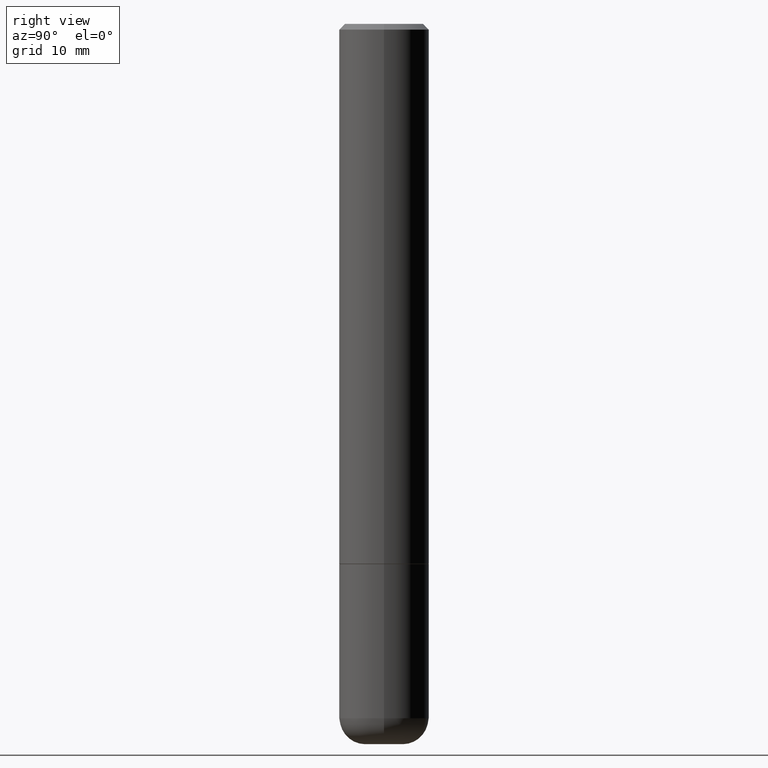
[diagram: clean part render]
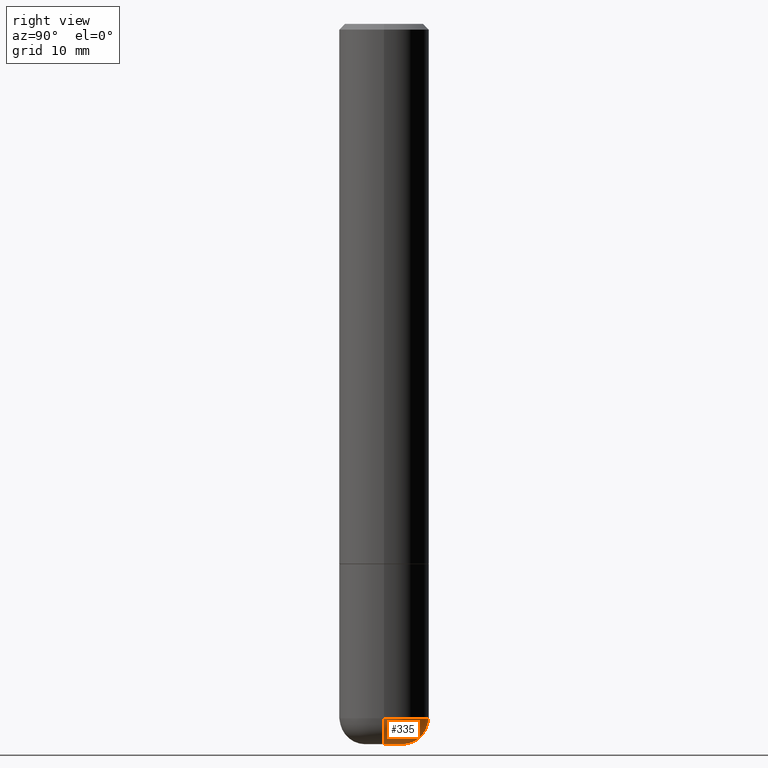
[diagram: same view with one face highlighted and labeled with its STEP entity id]
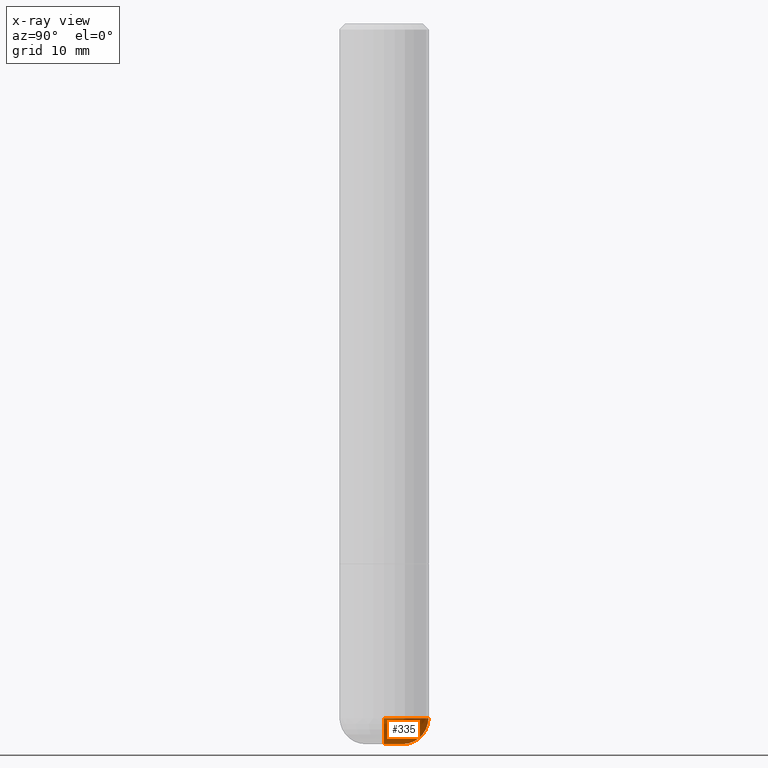
[diagram: x-ray of the same camera — body ghosted, the highlighted face saturated]
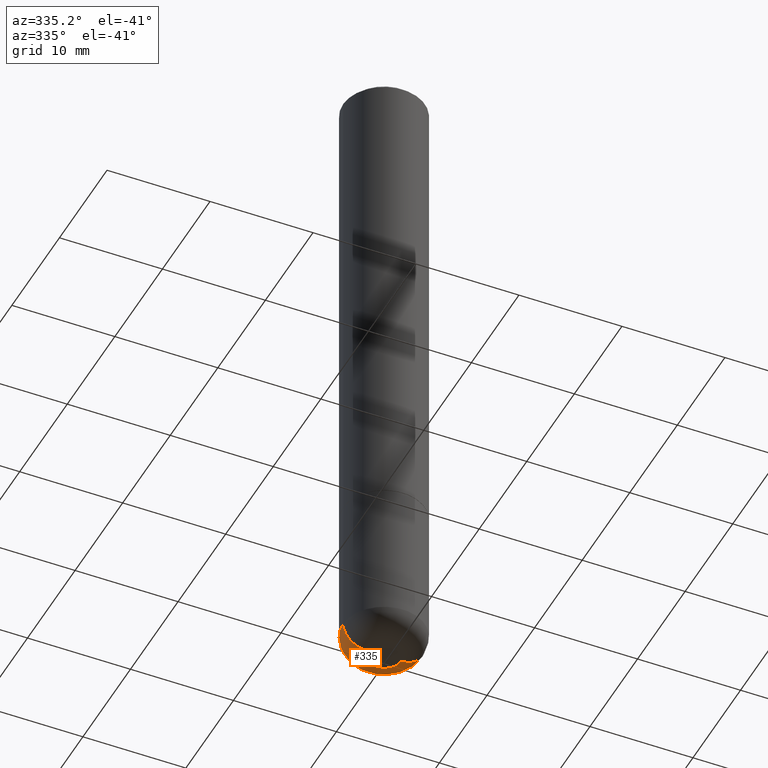
[diagram: same view with one face highlighted and labeled with its STEP entity id]
A machine part, right view. The second image highlights one B-rep face of the part: STEP entity #335.
The next image is the same camera in x-ray: the body ghosted, the highlighted face saturated — about 0% of this face is hidden behind the body in this view.
A second angle (auxiliary view) of the same face is appended — the face is thin or edge-on in the first view.
In plain terms, the highlighted toroidal blend (fillet) surface has major radius 1.6828 mm and minor (blend) radius 2.286 mm.
Its self-contained STEP definition (entity closure, byte-faithful):
#9 = DIRECTION ( 'NONE',  ( -1.000000000000000000, 7.105427357601006592E-15, 0.000000000000000000 ) ) ;
#11 = AXIS2_PLACEMENT_3D ( 'NONE', #305, #25, #283 ) ;
#20 = AXIS2_PLACEMENT_3D ( 'NONE', #362, #293, #156 ) ;
#25 = DIRECTION ( 'NONE',  ( -6.982962677686266711E-15, -1.000000000000000000, 3.491481338843145583E-15 ) ) ;
#27 = ORIENTED_EDGE ( 'NONE', *, *, #66, .T. ) ;
#42 = EDGE_CURVE ( 'NONE', #409, #275, #299, .T. ) ;
#61 = EDGE_CURVE ( 'NONE', #170, #330, #346, .T. ) ;
#66 = EDGE_CURVE ( 'NONE', #409, #170, #384, .T. ) ;
#68 = DIRECTION ( 'NONE',  ( -2.445468806185136597E-29, 3.491481338843145583E-15, 1.000000000000000000 ) ) ;
#75 = DIRECTION ( 'NONE',  ( 1.000000000000000000, -6.982962677686262766E-15, 0.000000000000000000 ) ) ;
#97 = AXIS2_PLACEMENT_3D ( 'NONE', #183, #179, #113 ) ;
#101 = TOROIDAL_SURFACE ( 'NONE', #97, 0.06625000000000001721, 0.08999999999999992728 ) ;
#113 = DIRECTION ( 'NONE',  ( 1.000000000000000000, -6.982962677686265922E-15, 4.883557194083112340E-29 ) ) ;
#135 = AXIS2_PLACEMENT_3D ( 'NONE', #388, #68, #75 ) ;
#156 = DIRECTION ( 'NONE',  ( 1.000000000000000000, -6.982962677686268288E-15, 0.000000000000000000 ) ) ;
#170 = VERTEX_POINT ( 'NONE', #191 ) ;
#179 = DIRECTION ( 'NONE',  ( -2.445468806185136597E-29, 3.491481338843145583E-15, 1.000000000000000000 ) ) ;
#183 = CARTESIAN_POINT ( 'NONE',  ( 5.893579822906179826E-29, -8.414470026611981678E-15, -2.410000000000000142 ) ) ;
#191 = CARTESIAN_POINT ( 'NONE',  ( -0.06625000000000001721, -7.781107893326811349E-15, -2.500000000000000000 ) ) ;
#202 = EDGE_LOOP ( 'NONE', ( #27, #301, #240, #264 ) ) ;
#226 = EDGE_CURVE ( 'NONE', #275, #330, #375, .T. ) ;
#240 = ORIENTED_EDGE ( 'NONE', *, *, #226, .F. ) ;
#261 = DIRECTION ( 'NONE',  ( 7.105427357601001859E-15, 1.000000000000000000, -3.491481338843145583E-15 ) ) ;
#264 = ORIENTED_EDGE ( 'NONE', *, *, #42, .F. ) ;
#273 = FACE_OUTER_BOUND ( 'NONE', #202, .T. ) ;
#275 = VERTEX_POINT ( 'NONE', #313 ) ;
#283 = DIRECTION ( 'NONE',  ( 1.000000000000000000, -6.982962677686273810E-15, 0.000000000000000000 ) ) ;
#293 = DIRECTION ( 'NONE',  ( -2.445468806185136597E-29, 3.491481338843145583E-15, 1.000000000000000000 ) ) ;
#299 = CIRCLE ( 'NONE', #11, 0.08999999999999992728 ) ;
#301 = ORIENTED_EDGE ( 'NONE', *, *, #61, .T. ) ;
#305 = CARTESIAN_POINT ( 'NONE',  ( 0.06625000000000001721, -8.877091304008696690E-15, -2.410000000000000142 ) ) ;
#313 = CARTESIAN_POINT ( 'NONE',  ( 0.1562499999999999722, -9.505557945000458485E-15, -2.410000000000000142 ) ) ;
#323 = CARTESIAN_POINT ( 'NONE',  ( -0.06625000000000001721, -7.943735464170915873E-15, -2.410000000000000142 ) ) ;
#330 = VERTEX_POINT ( 'NONE', #410 ) ;
#335 = ADVANCED_FACE ( 'NONE', ( #273 ), #101, .T. ) ;
#336 = CARTESIAN_POINT ( 'NONE',  ( 0.06625000000000001721, -9.191324624504579954E-15, -2.500000000000000000 ) ) ;
#346 = CIRCLE ( 'NONE', #356, 0.08999999999999992728 ) ;
#356 = AXIS2_PLACEMENT_3D ( 'NONE', #323, #261, #9 ) ;
#362 = CARTESIAN_POINT ( 'NONE',  ( 6.113672015462842613E-29, -8.728703347107864943E-15, -2.500000000000000000 ) ) ;
#375 = CIRCLE ( 'NONE', #135, 0.1562500000000000000 ) ;
#384 = CIRCLE ( 'NONE', #20, 0.06625000000000001721 ) ;
#388 = CARTESIAN_POINT ( 'NONE',  ( 5.893579822906179826E-29, -8.414470026611981678E-15, -2.410000000000000142 ) ) ;
#409 = VERTEX_POINT ( 'NONE', #336 ) ;
#410 = CARTESIAN_POINT ( 'NONE',  ( -0.1562499999999999722, -7.304247001986825138E-15, -2.410000000000000142 ) ) ;